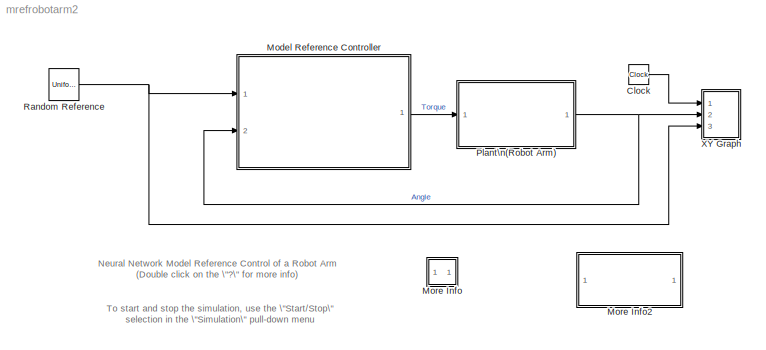
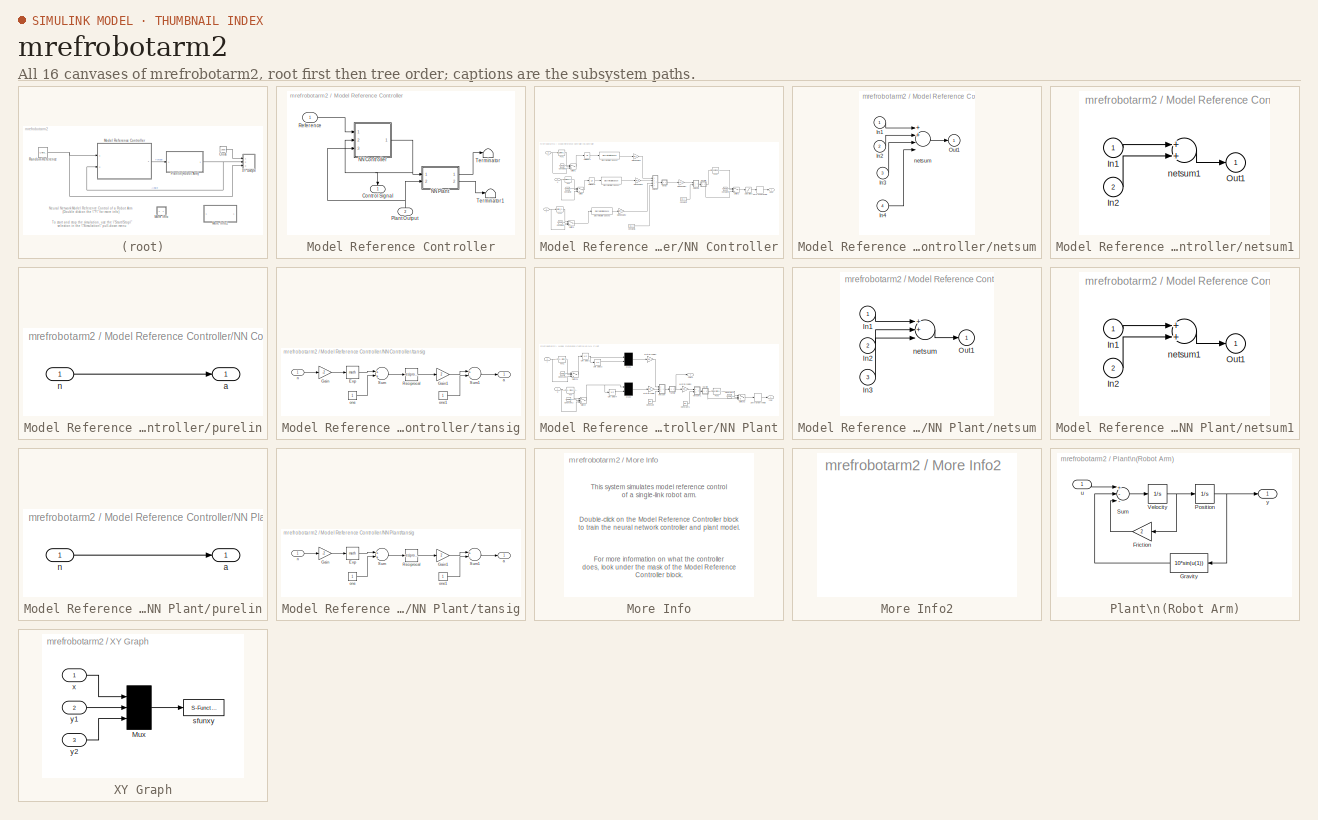
[diagram: thumbnail index - all 16 canvases of the model, root first then tree order]
MODEL mrefrobotarm2
KIND model
CONFIG AbsTol = 1e-6
CONFIG FixedStep = auto
CONFIG MaxStep = auto
CONFIG MinStep = auto
CONFIG RelTol = 1e-3
CONFIG Solver = ode45
CONFIG SolverMode = SingleTasking
CONFIG StartTime = 0.0
CONFIG StopTime = 60
BLOCK [Clock] Clock
  Decimation = 10
BLOCK [SubSystem] Model Reference Controller
  MaskCallbackString = ||||||||||||||||||||||||||||||||||||||||||||||
  MaskDescription = Neural network model reference controller.  You first train a neural network model of the plant to be controlled.  Then train the controller so that the plant output will follow the output of a reference model.  Double-click the Model Reference Control block to begin the plant and controller training.
  MaskDisplay = plot([[xl NaN x2]*.9-.075 ], [[yl  NaN y2]*.9-.1 ]);\ntext(x1t,y1t,'Plant Output');\ntext(x2t,y2t,'Reference');\ntext(x3t,y3t,'Control');\ntext(x4t,y4t,'Signal');\ntext(x5t,y5t,'Neural');\ntext(x6t,y6t,'Network');\ntext(x7t,y7t,'Controller');
  MaskEnableString = on,on,on,on,on,on,on,on,on,on,on,on,on,on,on,on,on,on,on,on,on,on,on,on,on,on,on,on,on,on,on,on,on,on,on,on,on,on,on,on,on,on,on,on,on,on,on
  MaskIconFrame = on
  MaskIconOpaque = on
  MaskIconRotate = none
  MaskIconUnits = normalized
  MaskInitialization = xl = [0   .53     .53     .92   .92   .53   .53  NaN ];\nyl = [.95 .95 1.05 1.05 .3   .3   .95 NaN  ];\nx2 = [0 .53    NaN .92 1.2  ];\ny2 = [.39 .39   NaN .65 .65  ];\nt=(0:24)/24*2*pi;\nxs = .07*cos(t)+.9;\nys = .07*sin(t)+.75;\n\nx1t=.03; y1t=.31;\nx2t=.03; y2t=.8;\nx3t=.77; y3t=.53;\nx4t=.77; y4t=.44;\nx5t=.45; y5t=.66;\nx6t=.45; y6t=.55;\nx7t=.45; y7t=.44;
  MaskPromptString = Sample time|S1|Ni|Nj|sim_file|Training function Identification|Use_Validation|Use_Testing|Use_Inc_training|Use_previous_weights|max_i|min_i|max_r|min_r|sam_training|sam_training_c|epochs|epochs_c|minp|maxp|mint|maxt|Normalize|IW|LW1_2|LW2_1|B1|B2|S1c|Limit output|min_output|max_output|Ref_file|Nrc|Nic|Njc|IW_y|IW_u|IW_r|B1_c|B2_c|LW_c|retraining_c|max_i_int|min_i_int|max_r_int|min_r_int
  MaskStyleString = edit,edit,edit,edit,edit,popup(trainbfg|trainbr |traincgb|traincgf|traincgp|traingd|traingdm|traingda|traingdx|trainlm |trainoss|trainrp |trainscg),edit,edit,edit,edit,edit,edit,edit,edit,edit,edit,edit,edit,edit,edit,edit,edit,edit,edit,edit,edit,edit,edit,edit,edit,edit,edit,edit,edit,edit,edit,edit,edit,edit,edit,edit,edit,edit,edit,edit,edit,edit
  MaskToolTipString = on,on,on,on,on,on,on,on,on,on,on,on,on,on,on,on,on,on,on,on,on,on,on,on,on,on,on,on,on,on,on,on,on,on,on,on,on,on,on,on,on,on,on,on,on,on,on
  MaskTunableValueString = on,on,on,on,on,on,on,on,on,on,on,on,on,on,on,on,on,on,on,on,on,on,on,on,on,on,on,on,on,on,on,on,on,on,on,on,on,on,on,on,on,on,on,on,on,on,on
  MaskType = NN Model Reference Control
  MaskValueString = 0.05|10|2|2|robotarm|trainlm |1|1|0|1|15|-15|0.7|-0.7|10000|6000|300|10|-14.988293499961703|14.923704088055537|-3.3363903927128264|3.3206956917347106|1|[-0.011469687396173215 0.040727561644111239;1.075316793085894 3.6796838641403276;-1.0685679888493944 -1.4205632700292121;0.14367732817658238 0.6152803692703297;-0.46805195984615566 2.5890011355180014;-0.00099986462717487263 -0.0007252338745319933;0...<+2926ch>
  MaskVarAliasString = ,,,,,,,,,,,,,,,,,,,,,,,,,,,,,,,,,,,,,,,,,,,,,,
  MaskVariables = Ts=@1;S1=@2;Ni=@3;Nj=@4;sim_file=&5;trainfun=@6;Use_validation=@7;Use_Testing=@8;Use_Inc_training=@9;Use_previous_weights=@10;max_i=@11;min_i=@12;max_r=@13;min_r=@14;sam_training=@15;sam_training_c=@16;epochs=@17;epochs_c=@18;minp=@19;maxp=@20;mint=@21;maxt=@22;Normalize=@23;IW=@24;LW1_2=@25;LW2_1=@26;B1=@27;B2=@28;S1c=@29;Limit_output=@30;min_output=@31;max_output=@32;Ref_file=&33;Nrc=@34;Nic=@35...<+136ch>
  MaskVisibilityString = on,on,on,on,on,on,on,on,on,on,on,on,on,on,on,on,on,on,on,on,on,on,on,on,on,on,on,on,on,on,on,on,on,on,on,on,on,on,on,on,on,on,on,on,on,on,on
  OpenFcn = nncontrolutil('nnmodref','',gcbh,gcb,'');
  Ports = [2, 1]
  TreatAsAtomicUnit = off
BLOCK [Outport] Model Reference Controller/Control Signal
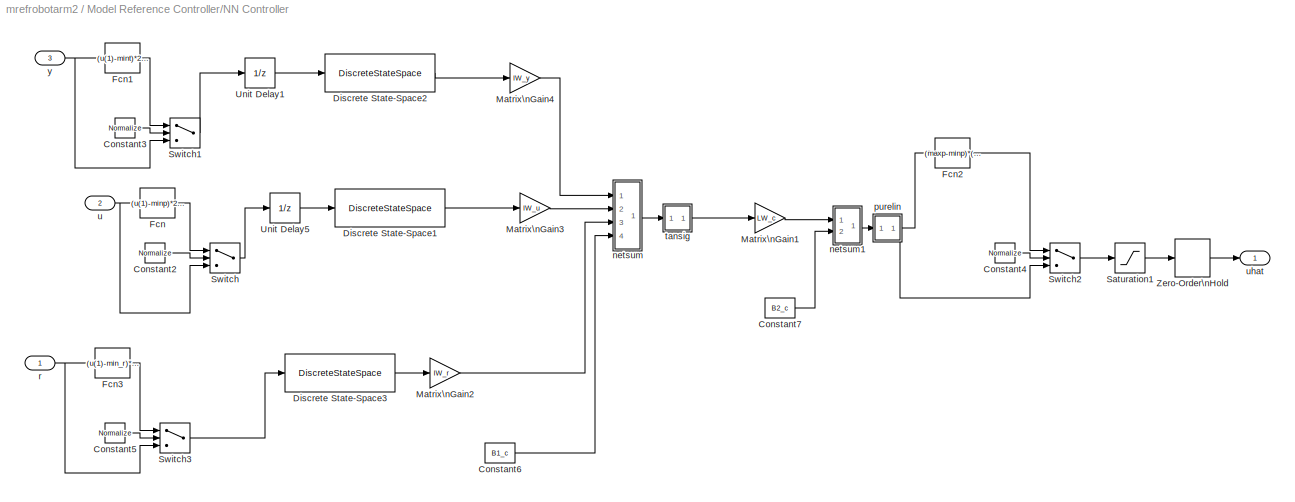
BLOCK [SubSystem] Model Reference Controller/NN Controller
  Ports = [3, 1]
  TreatAsAtomicUnit = off
BLOCK [Constant] Model Reference Controller/NN Controller/Constant2
  Value = Normalize
BLOCK [Constant] Model Reference Controller/NN Controller/Constant3
  Value = Normalize
BLOCK [Constant] Model Reference Controller/NN Controller/Constant4
  Value = Normalize
BLOCK [Constant] Model Reference Controller/NN Controller/Constant5
  Value = Normalize
BLOCK [Constant] Model Reference Controller/NN Controller/Constant6
  Value = B1_c
BLOCK [Constant] Model Reference Controller/NN Controller/Constant7
  Value = B2_c
BLOCK [DiscreteStateSpace] Model Reference Controller/NN Controller/Discrete State-Space1
  A = [zeros(1,max([Nic-1 1]));eye(Nic-2,Nic-1)]
  B = eye(max([Nic-1 1]),1)
  C = [zeros(1,max([Nic-1 1]));eye(Nic-1,Nic-1)]
  D = eye(Nic,1)
  SampleTime = Ts
BLOCK [DiscreteStateSpace] Model Reference Controller/NN Controller/Discrete State-Space2
  A = [zeros(1,max([Njc-1 1]));eye(Njc-2,Njc-1)]
  B = eye(max([Njc-1 1]),1)
  C = [zeros(1,max([Njc-1 1]));eye(Njc-1,Njc-1)]
  D = eye(Njc,1)
  SampleTime = Ts
BLOCK [DiscreteStateSpace] Model Reference Controller/NN Controller/Discrete State-Space3
  A = [zeros(1,max([Nrc-1 1]));eye(Nrc-2,Nrc-1)]
  B = eye(max([Nrc-1 1]),1)
  C = [zeros(1,max([Nrc-1 1]));eye(Nrc-1,Nrc-1)]
  D = eye(Nrc,1)
  SampleTime = Ts
BLOCK [Fcn] Model Reference Controller/NN Controller/Fcn
  Expr = (u(1)-minp)*2/(maxp-minp) - 1
BLOCK [Fcn] Model Reference Controller/NN Controller/Fcn1
  Expr = (u(1)-mint)*2/(maxt-mint) - 1
BLOCK [Fcn] Model Reference Controller/NN Controller/Fcn2
  Expr = (maxp-minp)*(u(1)+1)/2 + minp
BLOCK [Fcn] Model Reference Controller/NN Controller/Fcn3
  Expr = (u(1)-min_r)*2/(max_r-min_r) - 1
BLOCK [Gain] Model Reference Controller/NN Controller/Matrix\nGain1
  Gain = LW_c
  Multiplication = Matrix(K*u)
BLOCK [Gain] Model Reference Controller/NN Controller/Matrix\nGain2
  Gain = IW_r
  Multiplication = Matrix(K*u)
BLOCK [Gain] Model Reference Controller/NN Controller/Matrix\nGain3
  Gain = IW_u
  Multiplication = Matrix(K*u)
BLOCK [Gain] Model Reference Controller/NN Controller/Matrix\nGain4
  Gain = IW_y
  Multiplication = Matrix(K*u)
BLOCK [Saturate] Model Reference Controller/NN Controller/Saturation1
  LowerLimit = min_i
  UpperLimit = max_i
BLOCK [Switch] Model Reference Controller/NN Controller/Switch
  Threshold = 0.5
BLOCK [Switch] Model Reference Controller/NN Controller/Switch1
  Threshold = 0.5
BLOCK [Switch] Model Reference Controller/NN Controller/Switch2
  Threshold = 0.5
BLOCK [Switch] Model Reference Controller/NN Controller/Switch3
  Threshold = 0.5
BLOCK [UnitDelay] Model Reference Controller/NN Controller/Unit Delay1
  SampleTime = Ts
BLOCK [UnitDelay] Model Reference Controller/NN Controller/Unit Delay5
  SampleTime = Ts
BLOCK [ZeroOrderHold] Model Reference Controller/NN Controller/Zero-Order\nHold
  SampleTime = Ts
BLOCK [SubSystem] Model Reference Controller/NN Controller/netsum
  MaskDisplay = disp('+')
  MaskIconFrame = on
  MaskIconOpaque = on
  MaskIconRotate = none
  MaskIconUnits = autoscale
  Ports = [4, 1]
  TreatAsAtomicUnit = off
BLOCK [Inport] Model Reference Controller/NN Controller/netsum/In1
BLOCK [Inport] Model Reference Controller/NN Controller/netsum/In2
  Port = 2
BLOCK [Inport] Model Reference Controller/NN Controller/netsum/In3
  Port = 3
BLOCK [Inport] Model Reference Controller/NN Controller/netsum/In4
  Port = 4
BLOCK [Outport] Model Reference Controller/NN Controller/netsum/Out1
BLOCK [Sum] Model Reference Controller/NN Controller/netsum/netsum
  Inputs = 4
  Ports = [4, 1]
BLOCK [SubSystem] Model Reference Controller/NN Controller/netsum1
  MaskDisplay = disp('+')
  MaskIconFrame = on
  MaskIconOpaque = on
  MaskIconRotate = none
  MaskIconUnits = autoscale
  Ports = [2, 1]
  TreatAsAtomicUnit = off
BLOCK [Inport] Model Reference Controller/NN Controller/netsum1/In1
BLOCK [Inport] Model Reference Controller/NN Controller/netsum1/In2
  Port = 2
BLOCK [Outport] Model Reference Controller/NN Controller/netsum1/Out1
BLOCK [Sum] Model Reference Controller/NN Controller/netsum1/netsum1
  Inputs = 2
  Ports = [2, 1]
BLOCK [SubSystem] Model Reference Controller/NN Controller/purelin
  MaskDisplay = plot([-1 1],[0 0],[-1 1],[-1 1])
  MaskIconFrame = on
  MaskIconOpaque = on
  MaskIconRotate = none
  MaskIconUnits = autoscale
  Ports = [1, 1]
  TreatAsAtomicUnit = off
BLOCK [Outport] Model Reference Controller/NN Controller/purelin/a
BLOCK [Inport] Model Reference Controller/NN Controller/purelin/n
BLOCK [Inport] Model Reference Controller/NN Controller/r
BLOCK [SubSystem] Model Reference Controller/NN Controller/tansig
  MaskDisplay = plot([-1 1],[0 0],[-1 -.9 -.8 -.7 -.6 -.5 -.4 -.3 -.2 -.1 0 .1 .2 .3 .4 .5 .6 .7 .8 .9 1],2./(1+exp(-8*[-1 -.9 -.8 -.7 -.6 -.5 -.4 -.3 -.2 -.1 0 .1 .2 .3 .4 .5 .6 .7 .8 .9 1]))-1)
  MaskIconFrame = on
  MaskIconOpaque = on
  MaskIconRotate = none
  MaskIconUnits = autoscale
  Ports = [1, 1]
  TreatAsAtomicUnit = off
BLOCK [Math] Model Reference Controller/NN Controller/tansig/Exp
  MaskIconFrame = on
  MaskIconOpaque = on
  MaskIconRotate = none
  MaskIconUnits = autoscale
  Ports = [1, 1]
BLOCK [Gain] Model Reference Controller/NN Controller/tansig/Gain
  Gain = -2
BLOCK [Gain] Model Reference Controller/NN Controller/tansig/Gain1
  Gain = 2
BLOCK [Math] Model Reference Controller/NN Controller/tansig/Reciprocal
  MaskIconFrame = on
  MaskIconOpaque = on
  MaskIconRotate = none
  MaskIconUnits = autoscale
  Operator = reciprocal
  Ports = [1, 1]
BLOCK [Sum] Model Reference Controller/NN Controller/tansig/Sum
  Ports = [2, 1]
BLOCK [Sum] Model Reference Controller/NN Controller/tansig/Sum1
  Inputs = +-
  Ports = [2, 1]
BLOCK [Outport] Model Reference Controller/NN Controller/tansig/a
BLOCK [Inport] Model Reference Controller/NN Controller/tansig/n
BLOCK [Constant] Model Reference Controller/NN Controller/tansig/one
BLOCK [Constant] Model Reference Controller/NN Controller/tansig/one1
BLOCK [Inport] Model Reference Controller/NN Controller/u
  Port = 2
BLOCK [Outport] Model Reference Controller/NN Controller/uhat
BLOCK [Inport] Model Reference Controller/NN Controller/y
  Port = 3
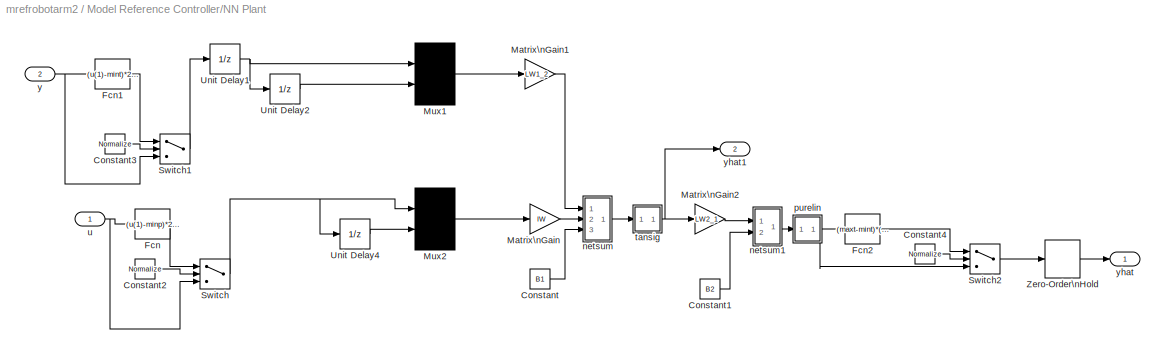
BLOCK [SubSystem] Model Reference Controller/NN Plant
  Ports = [2, 2]
  TreatAsAtomicUnit = off
BLOCK [Constant] Model Reference Controller/NN Plant/Constant
  Value = B1
BLOCK [Constant] Model Reference Controller/NN Plant/Constant1
  Value = B2
BLOCK [Constant] Model Reference Controller/NN Plant/Constant2
  Value = Normalize
BLOCK [Constant] Model Reference Controller/NN Plant/Constant3
  Value = Normalize
BLOCK [Constant] Model Reference Controller/NN Plant/Constant4
  Value = Normalize
BLOCK [Fcn] Model Reference Controller/NN Plant/Fcn
  Expr = (u(1)-minp)*2/(maxp-minp) - 1
BLOCK [Fcn] Model Reference Controller/NN Plant/Fcn1
  Expr = (u(1)-mint)*2/(maxt-mint) - 1
BLOCK [Fcn] Model Reference Controller/NN Plant/Fcn2
  Expr = (maxt-mint)*(u(1)+1)/2 + mint
BLOCK [Gain] Model Reference Controller/NN Plant/Matrix\nGain
  Gain = IW
  Multiplication = Matrix(K*u)
BLOCK [Gain] Model Reference Controller/NN Plant/Matrix\nGain1
  Gain = LW1_2
  Multiplication = Matrix(K*u)
BLOCK [Gain] Model Reference Controller/NN Plant/Matrix\nGain2
  Gain = LW2_1
  Multiplication = Matrix(K*u)
BLOCK [Mux] Model Reference Controller/NN Plant/Mux1
  DisplayOption = signals
  Inputs = 2
  Ports = [2, 1]
BLOCK [Mux] Model Reference Controller/NN Plant/Mux2
  DisplayOption = signals
  Inputs = 2
  Ports = [2, 1]
BLOCK [Switch] Model Reference Controller/NN Plant/Switch
  Threshold = 0.5
BLOCK [Switch] Model Reference Controller/NN Plant/Switch1
  Threshold = 0.5
BLOCK [Switch] Model Reference Controller/NN Plant/Switch2
  Threshold = 0.5
BLOCK [UnitDelay] Model Reference Controller/NN Plant/Unit Delay1
  SampleTime = Ts
BLOCK [UnitDelay] Model Reference Controller/NN Plant/Unit Delay2
  SampleTime = Ts
BLOCK [UnitDelay] Model Reference Controller/NN Plant/Unit Delay4
  SampleTime = Ts
BLOCK [ZeroOrderHold] Model Reference Controller/NN Plant/Zero-Order\nHold
  SampleTime = Ts
BLOCK [SubSystem] Model Reference Controller/NN Plant/netsum
  MaskDisplay = disp('+')
  MaskIconFrame = on
  MaskIconOpaque = on
  MaskIconRotate = none
  MaskIconUnits = autoscale
  Ports = [3, 1]
  TreatAsAtomicUnit = off
BLOCK [Inport] Model Reference Controller/NN Plant/netsum/In1
BLOCK [Inport] Model Reference Controller/NN Plant/netsum/In2
  Port = 2
BLOCK [Inport] Model Reference Controller/NN Plant/netsum/In3
  Port = 3
BLOCK [Outport] Model Reference Controller/NN Plant/netsum/Out1
BLOCK [Sum] Model Reference Controller/NN Plant/netsum/netsum
  Inputs = 3
  Ports = [3, 1]
BLOCK [SubSystem] Model Reference Controller/NN Plant/netsum1
  MaskDisplay = disp('+')
  MaskIconFrame = on
  MaskIconOpaque = on
  MaskIconRotate = none
  MaskIconUnits = autoscale
  Ports = [2, 1]
  TreatAsAtomicUnit = off
BLOCK [Inport] Model Reference Controller/NN Plant/netsum1/In1
BLOCK [Inport] Model Reference Controller/NN Plant/netsum1/In2
  Port = 2
BLOCK [Outport] Model Reference Controller/NN Plant/netsum1/Out1
BLOCK [Sum] Model Reference Controller/NN Plant/netsum1/netsum1
  Inputs = 2
  Ports = [2, 1]
BLOCK [SubSystem] Model Reference Controller/NN Plant/purelin
  MaskDisplay = plot([-1 1],[0 0],[-1 1],[-1 1])
  MaskIconFrame = on
  MaskIconOpaque = on
  MaskIconRotate = none
  MaskIconUnits = autoscale
  Ports = [1, 1]
  TreatAsAtomicUnit = off
BLOCK [Outport] Model Reference Controller/NN Plant/purelin/a
BLOCK [Inport] Model Reference Controller/NN Plant/purelin/n
BLOCK [SubSystem] Model Reference Controller/NN Plant/tansig
  MaskDisplay = plot([-1 1],[0 0],[-1 -.9 -.8 -.7 -.6 -.5 -.4 -.3 -.2 -.1 0 .1 .2 .3 .4 .5 .6 .7 .8 .9 1],2./(1+exp(-8*[-1 -.9 -.8 -.7 -.6 -.5 -.4 -.3 -.2 -.1 0 .1 .2 .3 .4 .5 .6 .7 .8 .9 1]))-1)
  MaskIconFrame = on
  MaskIconOpaque = on
  MaskIconRotate = none
  MaskIconUnits = autoscale
  Ports = [1, 1]
  TreatAsAtomicUnit = off
BLOCK [Math] Model Reference Controller/NN Plant/tansig/Exp
  MaskIconFrame = on
  MaskIconOpaque = on
  MaskIconRotate = none
  MaskIconUnits = autoscale
  Ports = [1, 1]
BLOCK [Gain] Model Reference Controller/NN Plant/tansig/Gain
  Gain = -2
BLOCK [Gain] Model Reference Controller/NN Plant/tansig/Gain1
  Gain = 2
BLOCK [Math] Model Reference Controller/NN Plant/tansig/Reciprocal
  MaskIconFrame = on
  MaskIconOpaque = on
  MaskIconRotate = none
  MaskIconUnits = autoscale
  Operator = reciprocal
  Ports = [1, 1]
BLOCK [Sum] Model Reference Controller/NN Plant/tansig/Sum
  Ports = [2, 1]
BLOCK [Sum] Model Reference Controller/NN Plant/tansig/Sum1
  Inputs = +-
  Ports = [2, 1]
BLOCK [Outport] Model Reference Controller/NN Plant/tansig/a
BLOCK [Inport] Model Reference Controller/NN Plant/tansig/n
BLOCK [Constant] Model Reference Controller/NN Plant/tansig/one
BLOCK [Constant] Model Reference Controller/NN Plant/tansig/one1
BLOCK [Inport] Model Reference Controller/NN Plant/u
BLOCK [Inport] Model Reference Controller/NN Plant/y
  Port = 2
BLOCK [Outport] Model Reference Controller/NN Plant/yhat
BLOCK [Outport] Model Reference Controller/NN Plant/yhat1
  Port = 2
BLOCK [Inport] Model Reference Controller/Plant Output
  Port = 2
BLOCK [Inport] Model Reference Controller/Reference
BLOCK [Terminator] Model Reference Controller/Terminator
BLOCK [Terminator] Model Reference Controller/Terminator1
BLOCK [SubSystem] More Info
  MaskDisplay = disp('?')
  MaskIconFrame = on
  MaskIconOpaque = on
  MaskIconRotate = none
  MaskIconUnits = autoscale
  Ports = []
  TreatAsAtomicUnit = off
BLOCK [SubSystem] More Info2
  MaskDisplay = disp('Double click\\nhere for\\nSimulink Help')
  MaskIconFrame = on
  MaskIconOpaque = on
  MaskIconRotate = none
  MaskIconUnits = autoscale
  OpenFcn = simcad(bdroot)
  Ports = []
  TreatAsAtomicUnit = off
BLOCK [SubSystem] Plant\n(Robot Arm)
  MaskDisplay = plot([-10],[0],[10],[0],[-2 -2 2 2 -2],[5 4 4 5 5],[0 3],[4.5 0.5])
  MaskIconFrame = on
  MaskIconOpaque = on
  MaskIconRotate = none
  MaskIconUnits = autoscale
  Ports = [1, 1]
  TreatAsAtomicUnit = off
BLOCK [Gain] Plant\n(Robot Arm)/Friction
  Gain = 2
BLOCK [Fcn] Plant\n(Robot Arm)/Gravity
  Expr = 10*sin(u(1))
BLOCK [Integrator] Plant\n(Robot Arm)/Position
  Ports = [1, 1]
BLOCK [Sum] Plant\n(Robot Arm)/Sum
  Inputs = +--
  Ports = [3, 1]
BLOCK [Integrator] Plant\n(Robot Arm)/Velocity
  Ports = [1, 1]
BLOCK [Inport] Plant\n(Robot Arm)/u
BLOCK [Outport] Plant\n(Robot Arm)/y
BLOCK [UniformRandomNumber] Random Reference
  Maximum = 0.5
  Minimum = -0.5
  SampleTime = 10
  Seed = round(now)
BLOCK [SubSystem] XY Graph
  CopyFcn = sfunxy2([],[],[],'CopyBlock')
  DeleteFcn = sfunxy2([],[],[],'DeleteBlock')
  LoadFcn = sfunxy2([],[],[],'LoadBlock')
  MaskCallbackString = ||||
  MaskDescription = XY scope using MATLAB graph window.  First input is used as time base.  Enter plotting ranges.
  MaskDisplay = plot([.05 .95 .95 .05 .05],[.45 .45 .95 .95 .45], 0.5+cos(0:0.1:2*pi)*0.3,0.7+sin(0:0.1:2*pi)*0.2)
  MaskEnableString = on,on,on,on,on
  MaskHelp = This block can be used to explore limit cycles. Look at the m-file sfunxy.m to see how it works.
  MaskIconFrame = on
  MaskIconOpaque = on
  MaskIconRotate = none
  MaskIconUnits = normalized
  MaskPromptString = x-min:|x-max:|y-min:|y-max:|Sample time:
  MaskSelfModifiable = on
  MaskStyleString = edit,edit,edit,edit,edit
  MaskToolTipString = on,on,on,on,on
  MaskTunableValueString = on,on,on,on,on
  MaskType = XY scope.
  MaskValueString = 0|5|-1|1|-1
  MaskVarAliasString = ,,,,
  MaskVariables = xmin=@1;xmax=@2;ymin=@3;ymax=@4;st=@5;
  MaskVisibilityString = on,on,on,on,on
  NameChangeFcn = sfunxy2([],[],[],'NameChange')
  Ports = [3]
  StartFcn = sfunxy2([],[],[],'Start')
  StopFcn = sfunxy2([],[],[],'Stop')
  TreatAsAtomicUnit = off
BLOCK [Mux] XY Graph/Mux
  Inputs = 3
  Ports = [3, 1]
BLOCK [S-Function] XY Graph/sfunxy
  FunctionName = sfunxy2
  Parameters = [xmin xmax ymin ymax], st
  Ports = [1]
BLOCK [Inport] XY Graph/x
BLOCK [Inport] XY Graph/y1
  Port = 2
BLOCK [Inport] XY Graph/y2
  Port = 3
ANNOTATION (root): Neural Network Model Reference Control of a Robot Arm\n(Double click on the \"?\" for more info)
ANNOTATION (root): To start and stop the simulation, use the \"Start/Stop\"\nselection in the \"Simulation\" pull-down menu
ANNOTATION More Info: Double-click on the Model Reference Controller block\nto train the neural network controller and plant model.
ANNOTATION More Info: For more information on what the controller \ndoes, look under the mask of the Model Reference \nController block.
ANNOTATION More Info: This system simulates model reference control\nof a single-link robot arm.
LINE Clock:1 -> XY Graph:1
LINE Model Reference Controller/NN Controller/Constant2:1 -> Model Reference Controller/NN Controller/Switch:2
LINE Model Reference Controller/NN Controller/Constant3:1 -> Model Reference Controller/NN Controller/Switch1:2
LINE Model Reference Controller/NN Controller/Constant4:1 -> Model Reference Controller/NN Controller/Switch2:2
LINE Model Reference Controller/NN Controller/Constant5:1 -> Model Reference Controller/NN Controller/Switch3:2
LINE Model Reference Controller/NN Controller/Constant6:1 -> Model Reference Controller/NN Controller/netsum:4
LINE Model Reference Controller/NN Controller/Constant7:1 -> Model Reference Controller/NN Controller/netsum1:2
LINE Model Reference Controller/NN Controller/Discrete State-Space1:1 -> Model Reference Controller/NN Controller/Matrix\nGain3:1
LINE Model Reference Controller/NN Controller/Discrete State-Space2:1 -> Model Reference Controller/NN Controller/Matrix\nGain4:1
LINE Model Reference Controller/NN Controller/Discrete State-Space3:1 -> Model Reference Controller/NN Controller/Matrix\nGain2:1
LINE Model Reference Controller/NN Controller/Fcn1:1 -> Model Reference Controller/NN Controller/Switch1:1
LINE Model Reference Controller/NN Controller/Fcn2:1 -> Model Reference Controller/NN Controller/Switch2:1
LINE Model Reference Controller/NN Controller/Fcn3:1 -> Model Reference Controller/NN Controller/Switch3:1
LINE Model Reference Controller/NN Controller/Fcn:1 -> Model Reference Controller/NN Controller/Switch:1
LINE Model Reference Controller/NN Controller/Matrix\nGain1:1 -> Model Reference Controller/NN Controller/netsum1:1
LINE Model Reference Controller/NN Controller/Matrix\nGain2:1 -> Model Reference Controller/NN Controller/netsum:3
LINE Model Reference Controller/NN Controller/Matrix\nGain3:1 -> Model Reference Controller/NN Controller/netsum:2
LINE Model Reference Controller/NN Controller/Matrix\nGain4:1 -> Model Reference Controller/NN Controller/netsum:1
LINE Model Reference Controller/NN Controller/Saturation1:1 -> Model Reference Controller/NN Controller/Zero-Order\nHold:1
LINE Model Reference Controller/NN Controller/Switch1:1 -> Model Reference Controller/NN Controller/Unit Delay1:1
LINE Model Reference Controller/NN Controller/Switch2:1 -> Model Reference Controller/NN Controller/Saturation1:1
LINE Model Reference Controller/NN Controller/Switch3:1 -> Model Reference Controller/NN Controller/Discrete State-Space3:1
LINE Model Reference Controller/NN Controller/Switch:1 -> Model Reference Controller/NN Controller/Unit Delay5:1
LINE Model Reference Controller/NN Controller/Unit Delay1:1 -> Model Reference Controller/NN Controller/Discrete State-Space2:1
LINE Model Reference Controller/NN Controller/Unit Delay5:1 -> Model Reference Controller/NN Controller/Discrete State-Space1:1
LINE Model Reference Controller/NN Controller/Zero-Order\nHold:1 -> Model Reference Controller/NN Controller/uhat:1
LINE Model Reference Controller/NN Controller/netsum/In1:1 -> Model Reference Controller/NN Controller/netsum/netsum:1
LINE Model Reference Controller/NN Controller/netsum/In2:1 -> Model Reference Controller/NN Controller/netsum/netsum:2
LINE Model Reference Controller/NN Controller/netsum/In3:1 -> Model Reference Controller/NN Controller/netsum/netsum:3
LINE Model Reference Controller/NN Controller/netsum/In4:1 -> Model Reference Controller/NN Controller/netsum/netsum:4
LINE Model Reference Controller/NN Controller/netsum/netsum:1 -> Model Reference Controller/NN Controller/netsum/Out1:1
LINE Model Reference Controller/NN Controller/netsum1/In1:1 -> Model Reference Controller/NN Controller/netsum1/netsum1:1
LINE Model Reference Controller/NN Controller/netsum1/In2:1 -> Model Reference Controller/NN Controller/netsum1/netsum1:2
LINE Model Reference Controller/NN Controller/netsum1/netsum1:1 -> Model Reference Controller/NN Controller/netsum1/Out1:1
LINE Model Reference Controller/NN Controller/netsum1:1 -> Model Reference Controller/NN Controller/purelin:1
LINE Model Reference Controller/NN Controller/netsum:1 -> Model Reference Controller/NN Controller/tansig:1
LINE Model Reference Controller/NN Controller/purelin/n:1 -> Model Reference Controller/NN Controller/purelin/a:1
NET Model Reference Controller/NN Controller/purelin:1 -> Model Reference Controller/NN Controller/Fcn2:1, Model Reference Controller/NN Controller/Switch2:3
NET Model Reference Controller/NN Controller/r:1 -> Model Reference Controller/NN Controller/Fcn3:1, Model Reference Controller/NN Controller/Switch3:3
LINE Model Reference Controller/NN Controller/tansig/Exp:1 -> Model Reference Controller/NN Controller/tansig/Sum:1
LINE Model Reference Controller/NN Controller/tansig/Gain1:1 -> Model Reference Controller/NN Controller/tansig/Sum1:1
LINE Model Reference Controller/NN Controller/tansig/Gain:1 -> Model Reference Controller/NN Controller/tansig/Exp:1
LINE Model Reference Controller/NN Controller/tansig/Reciprocal:1 -> Model Reference Controller/NN Controller/tansig/Gain1:1
LINE Model Reference Controller/NN Controller/tansig/Sum1:1 -> Model Reference Controller/NN Controller/tansig/a:1
LINE Model Reference Controller/NN Controller/tansig/Sum:1 -> Model Reference Controller/NN Controller/tansig/Reciprocal:1
LINE Model Reference Controller/NN Controller/tansig/n:1 -> Model Reference Controller/NN Controller/tansig/Gain:1
LINE Model Reference Controller/NN Controller/tansig/one1:1 -> Model Reference Controller/NN Controller/tansig/Sum1:2
LINE Model Reference Controller/NN Controller/tansig/one:1 -> Model Reference Controller/NN Controller/tansig/Sum:2
LINE Model Reference Controller/NN Controller/tansig:1 -> Model Reference Controller/NN Controller/Matrix\nGain1:1
NET Model Reference Controller/NN Controller/u:1 -> Model Reference Controller/NN Controller/Fcn:1, Model Reference Controller/NN Controller/Switch:3
NET Model Reference Controller/NN Controller/y:1 -> Model Reference Controller/NN Controller/Fcn1:1, Model Reference Controller/NN Controller/Switch1:3
NET Model Reference Controller/NN Controller:1 -> Model Reference Controller/Control Signal:1, Model Reference Controller/NN Controller:2, Model Reference Controller/NN Plant:1
LINE Model Reference Controller/NN Plant/Constant1:1 -> Model Reference Controller/NN Plant/netsum1:2
LINE Model Reference Controller/NN Plant/Constant2:1 -> Model Reference Controller/NN Plant/Switch:2
LINE Model Reference Controller/NN Plant/Constant3:1 -> Model Reference Controller/NN Plant/Switch1:2
LINE Model Reference Controller/NN Plant/Constant4:1 -> Model Reference Controller/NN Plant/Switch2:2
LINE Model Reference Controller/NN Plant/Constant:1 -> Model Reference Controller/NN Plant/netsum:3
LINE Model Reference Controller/NN Plant/Fcn1:1 -> Model Reference Controller/NN Plant/Switch1:1
LINE Model Reference Controller/NN Plant/Fcn2:1 -> Model Reference Controller/NN Plant/Switch2:1
LINE Model Reference Controller/NN Plant/Fcn:1 -> Model Reference Controller/NN Plant/Switch:1
LINE Model Reference Controller/NN Plant/Matrix\nGain1:1 -> Model Reference Controller/NN Plant/netsum:1
LINE Model Reference Controller/NN Plant/Matrix\nGain2:1 -> Model Reference Controller/NN Plant/netsum1:1
LINE Model Reference Controller/NN Plant/Matrix\nGain:1 -> Model Reference Controller/NN Plant/netsum:2
LINE Model Reference Controller/NN Plant/Mux1:1 -> Model Reference Controller/NN Plant/Matrix\nGain1:1
LINE Model Reference Controller/NN Plant/Mux2:1 -> Model Reference Controller/NN Plant/Matrix\nGain:1
LINE Model Reference Controller/NN Plant/Switch1:1 -> Model Reference Controller/NN Plant/Unit Delay1:1
LINE Model Reference Controller/NN Plant/Switch2:1 -> Model Reference Controller/NN Plant/Zero-Order\nHold:1
NET Model Reference Controller/NN Plant/Switch:1 -> Model Reference Controller/NN Plant/Mux2:1, Model Reference Controller/NN Plant/Unit Delay4:1
NET Model Reference Controller/NN Plant/Unit Delay1:1 -> Model Reference Controller/NN Plant/Mux1:1, Model Reference Controller/NN Plant/Unit Delay2:1
LINE Model Reference Controller/NN Plant/Unit Delay2:1 -> Model Reference Controller/NN Plant/Mux1:2
LINE Model Reference Controller/NN Plant/Unit Delay4:1 -> Model Reference Controller/NN Plant/Mux2:2
LINE Model Reference Controller/NN Plant/Zero-Order\nHold:1 -> Model Reference Controller/NN Plant/yhat:1
LINE Model Reference Controller/NN Plant/netsum/In1:1 -> Model Reference Controller/NN Plant/netsum/netsum:1
LINE Model Reference Controller/NN Plant/netsum/In2:1 -> Model Reference Controller/NN Plant/netsum/netsum:2
LINE Model Reference Controller/NN Plant/netsum/In3:1 -> Model Reference Controller/NN Plant/netsum/netsum:3
LINE Model Reference Controller/NN Plant/netsum/netsum:1 -> Model Reference Controller/NN Plant/netsum/Out1:1
LINE Model Reference Controller/NN Plant/netsum1/In1:1 -> Model Reference Controller/NN Plant/netsum1/netsum1:1
LINE Model Reference Controller/NN Plant/netsum1/In2:1 -> Model Reference Controller/NN Plant/netsum1/netsum1:2
LINE Model Reference Controller/NN Plant/netsum1/netsum1:1 -> Model Reference Controller/NN Plant/netsum1/Out1:1
LINE Model Reference Controller/NN Plant/netsum1:1 -> Model Reference Controller/NN Plant/purelin:1
LINE Model Reference Controller/NN Plant/netsum:1 -> Model Reference Controller/NN Plant/tansig:1
LINE Model Reference Controller/NN Plant/purelin/n:1 -> Model Reference Controller/NN Plant/purelin/a:1
NET Model Reference Controller/NN Plant/purelin:1 -> Model Reference Controller/NN Plant/Fcn2:1, Model Reference Controller/NN Plant/Switch2:3
LINE Model Reference Controller/NN Plant/tansig/Exp:1 -> Model Reference Controller/NN Plant/tansig/Sum:1
LINE Model Reference Controller/NN Plant/tansig/Gain1:1 -> Model Reference Controller/NN Plant/tansig/Sum1:1
LINE Model Reference Controller/NN Plant/tansig/Gain:1 -> Model Reference Controller/NN Plant/tansig/Exp:1
LINE Model Reference Controller/NN Plant/tansig/Reciprocal:1 -> Model Reference Controller/NN Plant/tansig/Gain1:1
LINE Model Reference Controller/NN Plant/tansig/Sum1:1 -> Model Reference Controller/NN Plant/tansig/a:1
LINE Model Reference Controller/NN Plant/tansig/Sum:1 -> Model Reference Controller/NN Plant/tansig/Reciprocal:1
LINE Model Reference Controller/NN Plant/tansig/n:1 -> Model Reference Controller/NN Plant/tansig/Gain:1
LINE Model Reference Controller/NN Plant/tansig/one1:1 -> Model Reference Controller/NN Plant/tansig/Sum1:2
LINE Model Reference Controller/NN Plant/tansig/one:1 -> Model Reference Controller/NN Plant/tansig/Sum:2
NET Model Reference Controller/NN Plant/tansig:1 -> Model Reference Controller/NN Plant/Matrix\nGain2:1, Model Reference Controller/NN Plant/yhat1:1
NET Model Reference Controller/NN Plant/u:1 -> Model Reference Controller/NN Plant/Fcn:1, Model Reference Controller/NN Plant/Switch:3
NET Model Reference Controller/NN Plant/y:1 -> Model Reference Controller/NN Plant/Fcn1:1, Model Reference Controller/NN Plant/Switch1:3
LINE Model Reference Controller/NN Plant:1 -> Model Reference Controller/Terminator:1
LINE Model Reference Controller/NN Plant:2 -> Model Reference Controller/Terminator1:1
NET Model Reference Controller/Plant Output:1 -> Model Reference Controller/NN Controller:3, Model Reference Controller/NN Plant:2
LINE Model Reference Controller/Reference:1 -> Model Reference Controller/NN Controller:1
LINE Model Reference Controller:1 -> Plant\n(Robot Arm):1
LINE Plant\n(Robot Arm)/Friction:1 -> Plant\n(Robot Arm)/Sum:3
LINE Plant\n(Robot Arm)/Gravity:1 -> Plant\n(Robot Arm)/Sum:2
NET Plant\n(Robot Arm)/Position:1 -> Plant\n(Robot Arm)/Gravity:1, Plant\n(Robot Arm)/y:1
LINE Plant\n(Robot Arm)/Sum:1 -> Plant\n(Robot Arm)/Velocity:1
NET Plant\n(Robot Arm)/Velocity:1 -> Plant\n(Robot Arm)/Friction:1, Plant\n(Robot Arm)/Position:1
LINE Plant\n(Robot Arm)/u:1 -> Plant\n(Robot Arm)/Sum:1
NET Plant\n(Robot Arm):1 -> Model Reference Controller:2, XY Graph:2
NET Random Reference:1 -> Model Reference Controller:1, XY Graph:3
LINE XY Graph/Mux:1 -> XY Graph/sfunxy:1
LINE XY Graph/x:1 -> XY Graph/Mux:1
LINE XY Graph/y1:1 -> XY Graph/Mux:2
LINE XY Graph/y2:1 -> XY Graph/Mux:3
note: NET lines group one-source signal fan-out (src -> all destinations, sorted); 1:1 wires keep LINE
